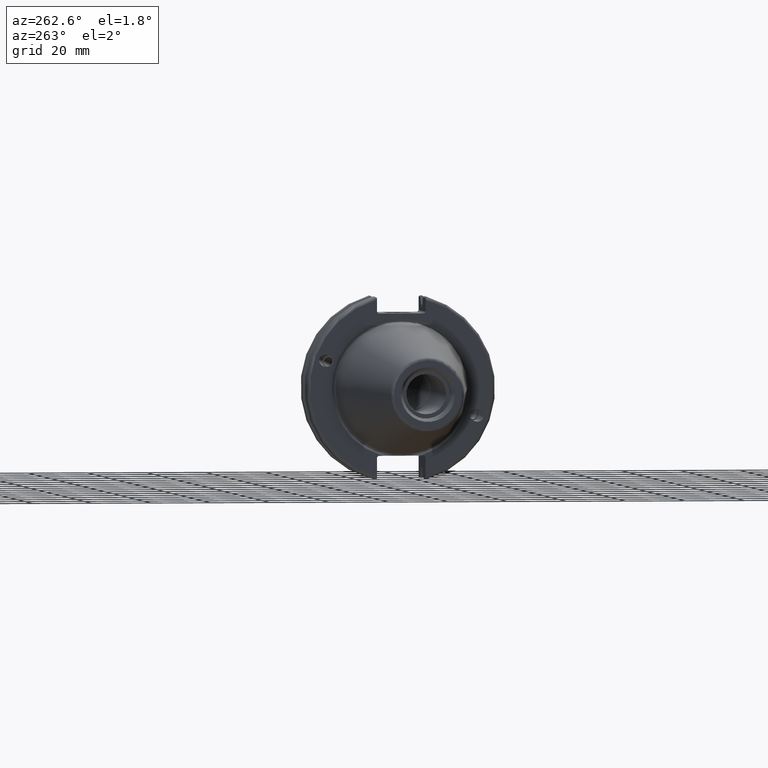
[diagram: clean part render]
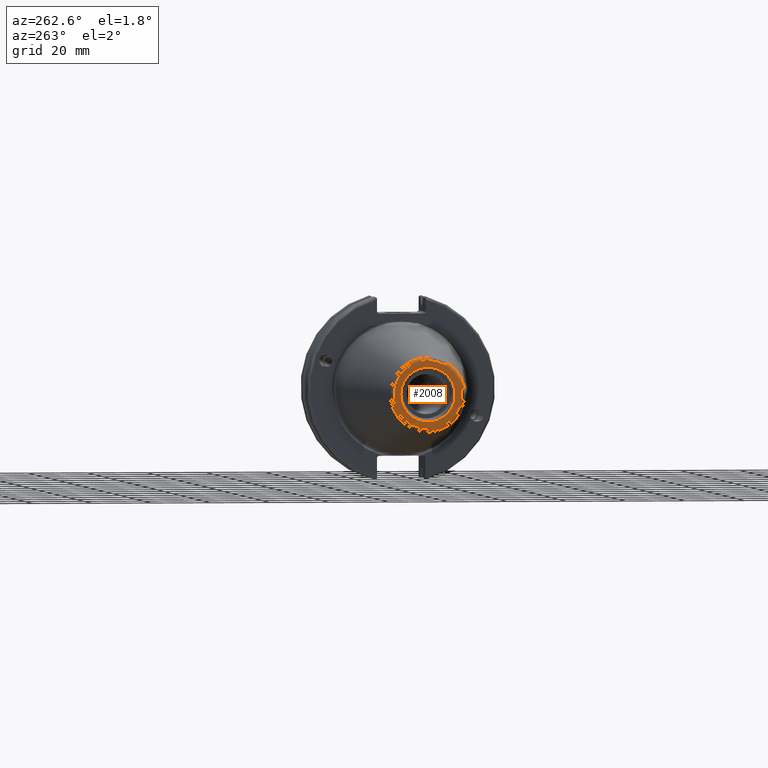
[diagram: same view with one face highlighted and labeled with its STEP entity id]
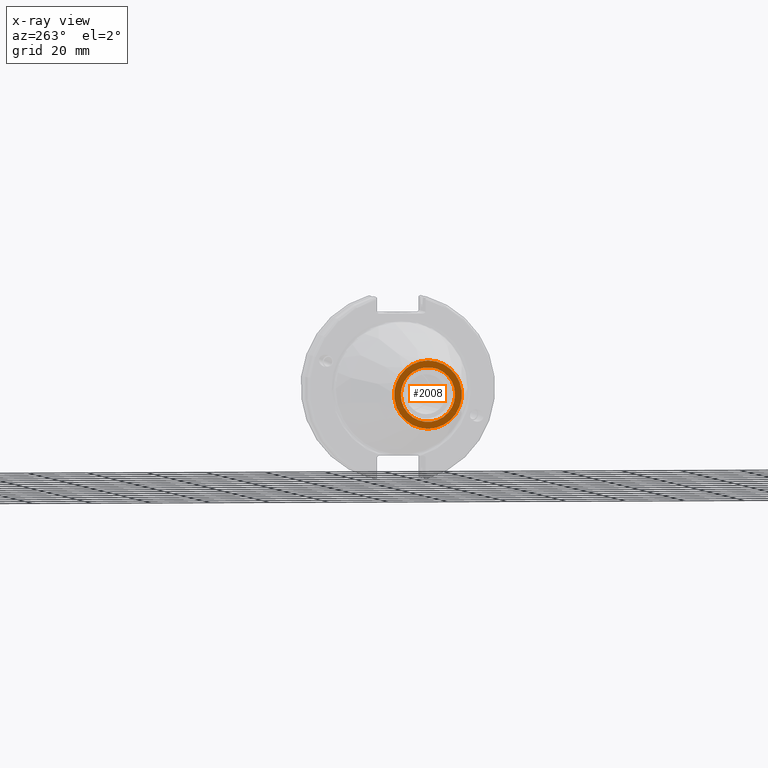
[diagram: x-ray of the same camera — body ghosted, the highlighted face saturated]
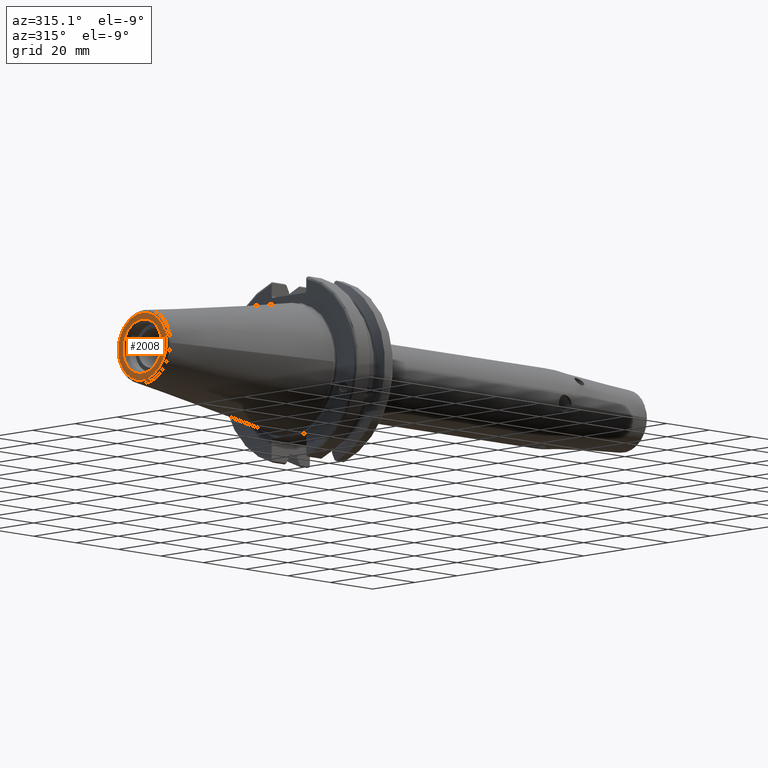
[diagram: same view with one face highlighted and labeled with its STEP entity id]
A machine part, auxiliary view. The second image highlights one B-rep face of the part: STEP entity #2008.
The next image is the same camera in x-ray: the body ghosted, the highlighted face saturated — about 0% of this face is hidden behind the body in this view.
A second angle (auxiliary view) of the same face is appended — the face is thin or edge-on in the first view.
In plain terms, the highlighted planar face has unit normal (-1, 0, 0).
Its self-contained STEP definition (entity closure, byte-faithful):
#72=PLANE('',#2230);
#119=FACE_BOUND('',#362,.T.);
#229=FACE_OUTER_BOUND('',#361,.T.);
#361=EDGE_LOOP('',(#1736));
#362=EDGE_LOOP('',(#1737));
#703=CIRCLE('',#2229,11.4071305970304);
#704=CIRCLE('',#2231,9.15);
#963=VERTEX_POINT('',#4608);
#964=VERTEX_POINT('',#4612);
#1239=EDGE_CURVE('',#963,#963,#703,.T.);
#1240=EDGE_CURVE('',#964,#964,#704,.T.);
#1736=ORIENTED_EDGE('',*,*,#1239,.F.);
#1737=ORIENTED_EDGE('',*,*,#1240,.T.);
#2008=ADVANCED_FACE('',(#229,#119),#72,.T.);
#2229=AXIS2_PLACEMENT_3D('',#4610,#2708,#2709);
#2230=AXIS2_PLACEMENT_3D('',#4611,#2710,#2711);
#2231=AXIS2_PLACEMENT_3D('',#4613,#2712,#2713);
#2708=DIRECTION('center_axis',(1.,0.,0.));
#2709=DIRECTION('ref_axis',(0.,-1.,1.83697019872103E-16));
#2710=DIRECTION('center_axis',(-1.,0.,0.));
#2711=DIRECTION('ref_axis',(0.,0.,1.));
#2712=DIRECTION('center_axis',(1.,0.,0.));
#2713=DIRECTION('ref_axis',(0.,0.,-1.));
#4608=CARTESIAN_POINT('',(-68.25,-1.39697059731091E-15,11.4071305970304));
#4610=CARTESIAN_POINT('Origin',(-68.25,0.,0.));
#4611=CARTESIAN_POINT('Origin',(-68.25,12.271875,0.));
#4612=CARTESIAN_POINT('',(-68.25,-9.15,-1.12055182121983E-15));
#4613=CARTESIAN_POINT('Origin',(-68.25,0.,0.));